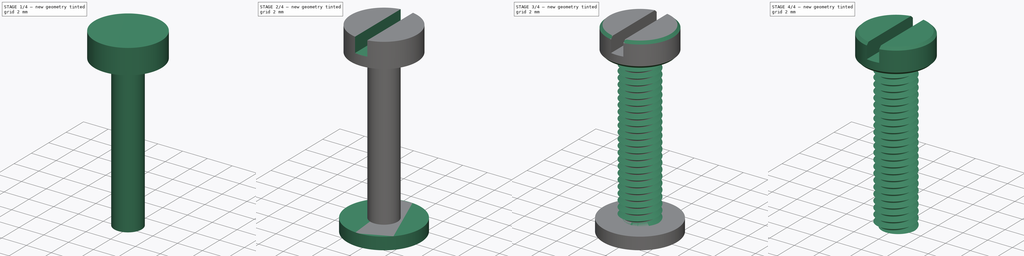
[diagram: build sequence overview — one tinted view per stage of 4, left to right]
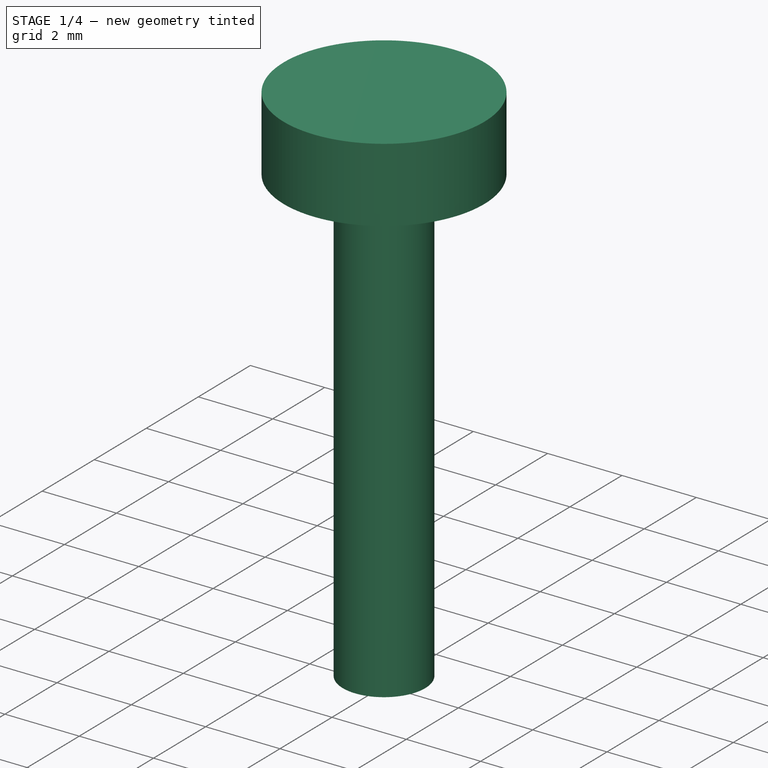
[diagram: stage 1 of 4 — iso view after this stage's code; geometry added in this stage tinted green]
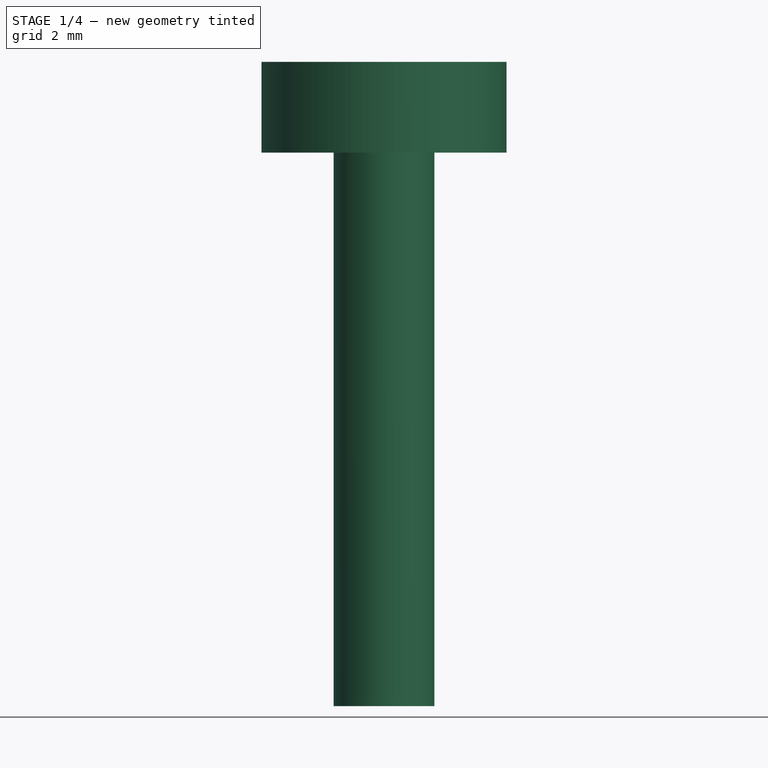
[diagram: stage 1 of 4 — front view after this stage's code; geometry added in this stage tinted green]
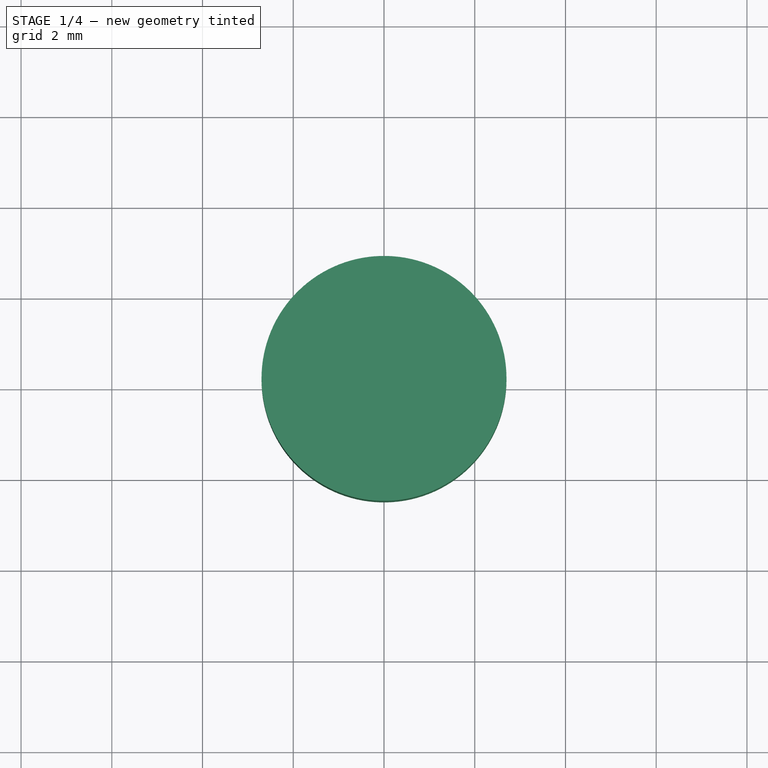
[diagram: stage 1 of 4 — top view after this stage's code; geometry added in this stage tinted green]
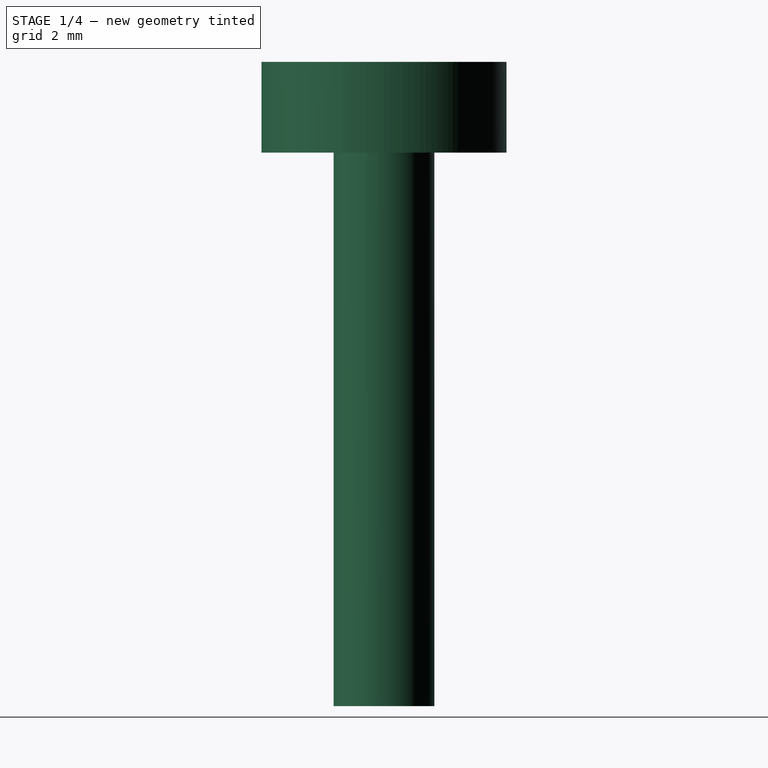
[diagram: stage 1 of 4 — right view after this stage's code; geometry added in this stage tinted green]
FCSTD DOCUMENT  (FreeCAD 0.18R16131 (Git))
Label: Screw tornillo M3x12
License: Public Domain
LicenseURL: http://en.wikipedia.org/wiki/Public_domain
objects: Sketcher::SketchObject×4, Part::MultiFuse×2, Part::Helix×1, Part::Feature×1, Part::Sweep×1, Part::Cylinder×1, PartDesign::Pad×1, PartDesign::Pocket×1, Part::Chamfer×1, PartDesign::Body×1, Part::Extrusion×1, Part::Cut×1, App::DocumentObjectGroup×1
note: 18 computed .brp shape members not serialized (recipe doc carries the construction recipe); baked Part::Feature solids carry a one-line shape summary decoded from their .brp

FEATURE [PartDesign::Pad] Pad009  label="extrusion cabeza tornillo"
  Length = 2
  Length2 = 100
  Placement = pos=(0,0,12.2) rot=(0,0,1;0rad)
  Profile = -> Sketch022
  Refine = true
  Type = 0
FEATURE [PartDesign::Body] Body002  label="Cuerpo Tornillo M3x12"
  Group = -> [Sketch022,Pad009,Sketch023,Pocket004002]
  Origin = -> Origin286
  Tip = -> Pocket004002
FEATURE [Part::Extrusion] Extrude013  label="cilindro nucleo"
  Base = -> Sketch021
  Dir = (0,0,1)
  DirMode = 2
  FaceMakerClass = Part::FaceMakerBullseye
  LengthFwd = 12.22
  LengthRev = 0
  Solid = true
  Symmetric = false
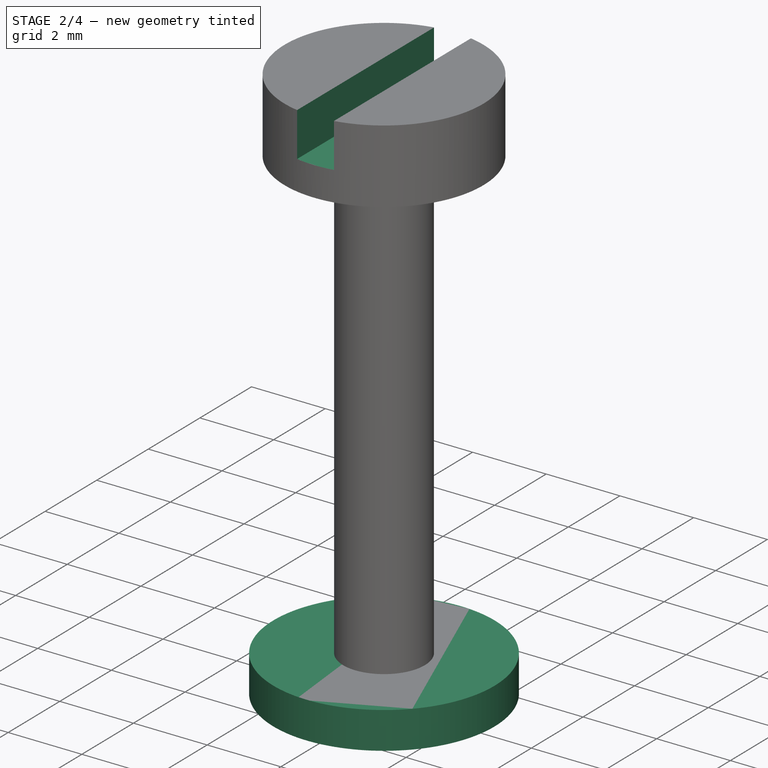
[diagram: stage 2 of 4 — iso view after this stage's code; geometry added in this stage tinted green]
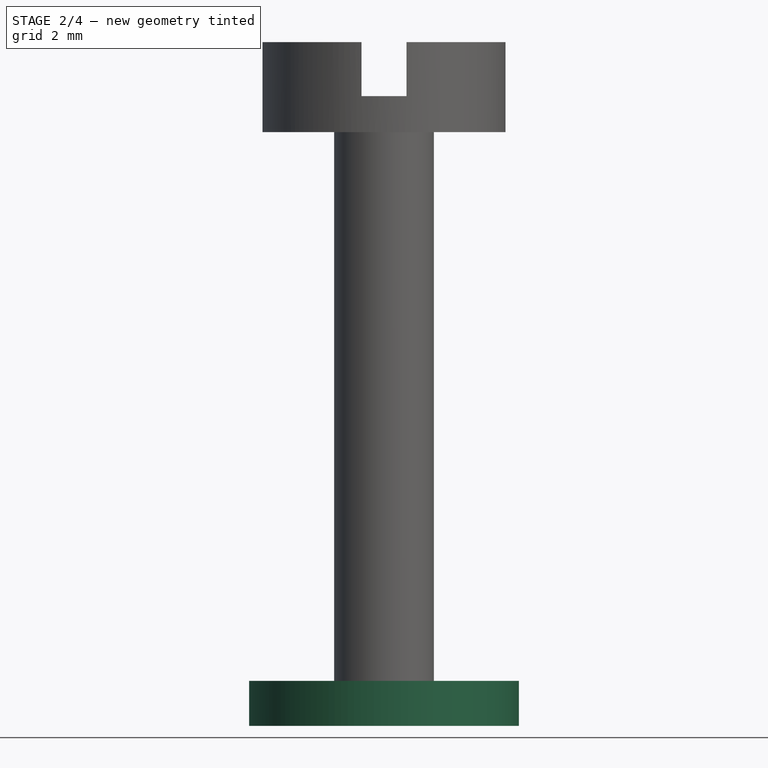
[diagram: stage 2 of 4 — front view after this stage's code; geometry added in this stage tinted green]
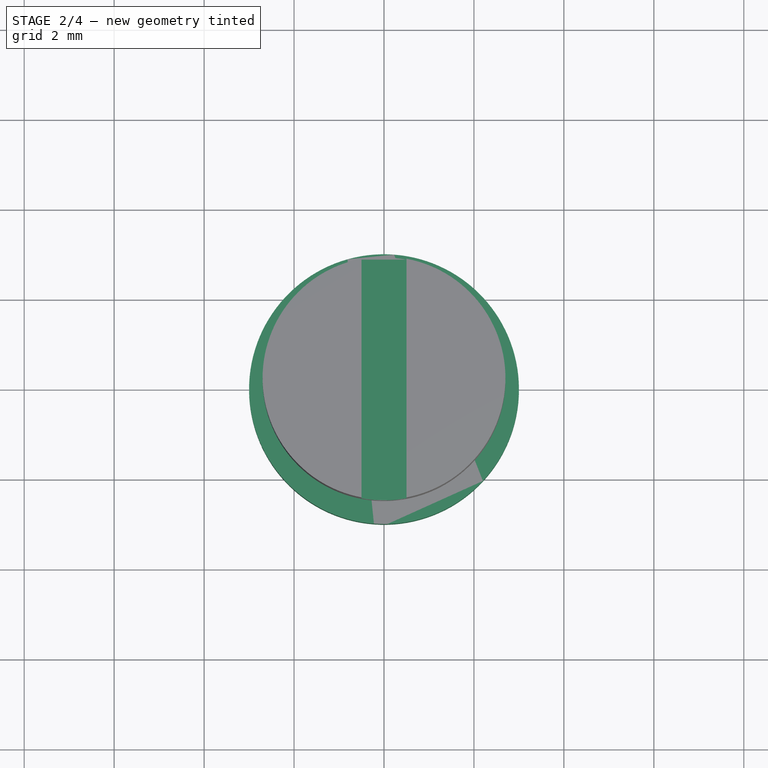
[diagram: stage 2 of 4 — top view after this stage's code; geometry added in this stage tinted green]
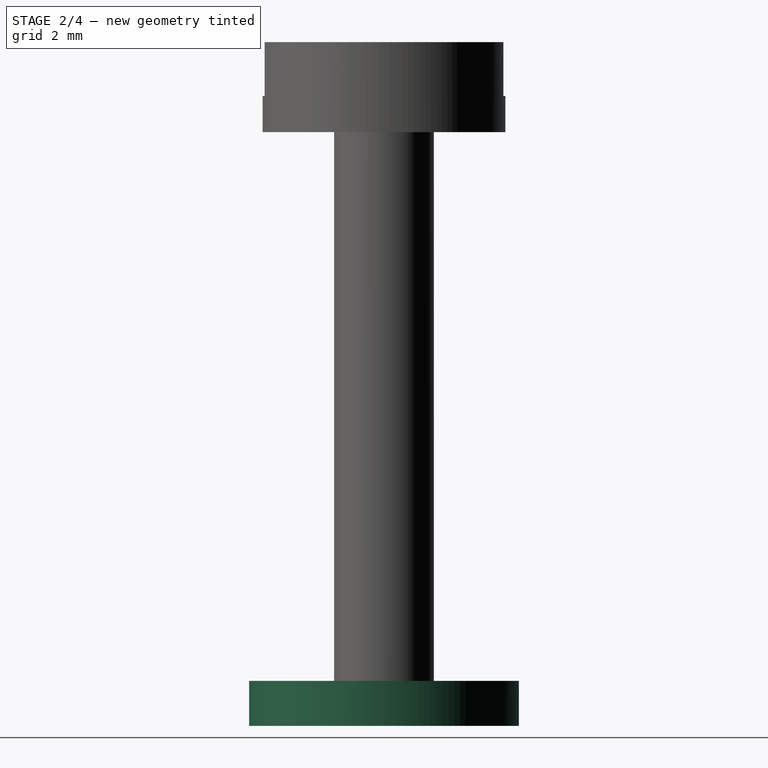
[diagram: stage 2 of 4 — right view after this stage's code; geometry added in this stage tinted green]
FEATURE [Part::Cylinder] Cylinder004  label="Cilindro004"
  Angle = 360
  AttacherType = Attacher::AttachEngine3D
  Height = 1
  Placement = pos=(0,0,-1) rot=(0,0,1;0rad)
  Radius = 3
FEATURE [Sketcher::SketchObject] Sketch023  label="endiduda destornillador"
  MapMode = 5
  Placement = pos=(0,0,14.2) rot=(0,0,1;0rad)
  Support = -> [Pad009]
  sketch-geometry (4):
    g0: LineSegment StartX=-0.5 StartY=3.13379 StartZ=0 EndX=0.5 EndY=3.13379 EndZ=0
    g1: LineSegment StartX=0.5 StartY=3.13379 StartZ=0 EndX=0.5 EndY=-3.13379 EndZ=0
    g2: LineSegment StartX=0.5 StartY=-3.13379 StartZ=0 EndX=-0.5 EndY=-3.13379 EndZ=0
    g3: LineSegment StartX=-0.5 StartY=-3.13379 StartZ=0 EndX=-0.5 EndY=3.13379 EndZ=0
  constraints (10):
    c: Coincident(g0,g1)
    c: Coincident(g1,g2)
    c: Coincident(g2,g3)
    c: Coincident(g3,g0)
    c: Horizontal(g0)
    c: Horizontal(g2)
    c: Vertical(g1)
    c: Vertical(g3)
    c: DistanceX(g2,g2) = 1
    c: Symmetric(g0,g1,g-1)
FEATURE [PartDesign::Pocket] Pocket004002  label="resta de endidura destornillador"
  BaseFeature = -> Pad009
  Length = 1.2
  Length2 = 100
  Placement = pos=(0,0,12.2) rot=(0,0,1;0rad)
  Profile = -> Sketch023
  Refine = true
  Type = 0
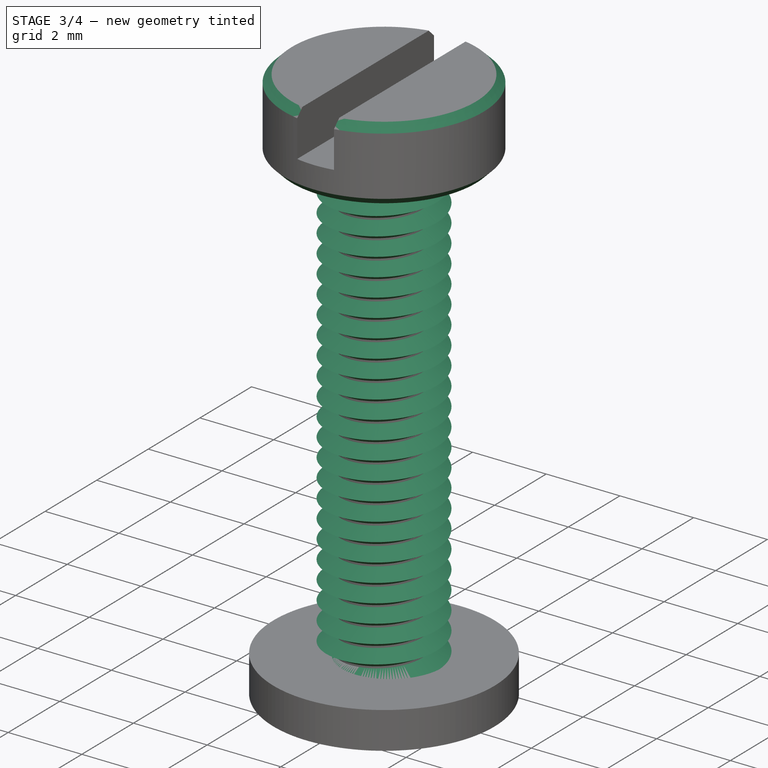
[diagram: stage 3 of 4 — iso view after this stage's code; geometry added in this stage tinted green]
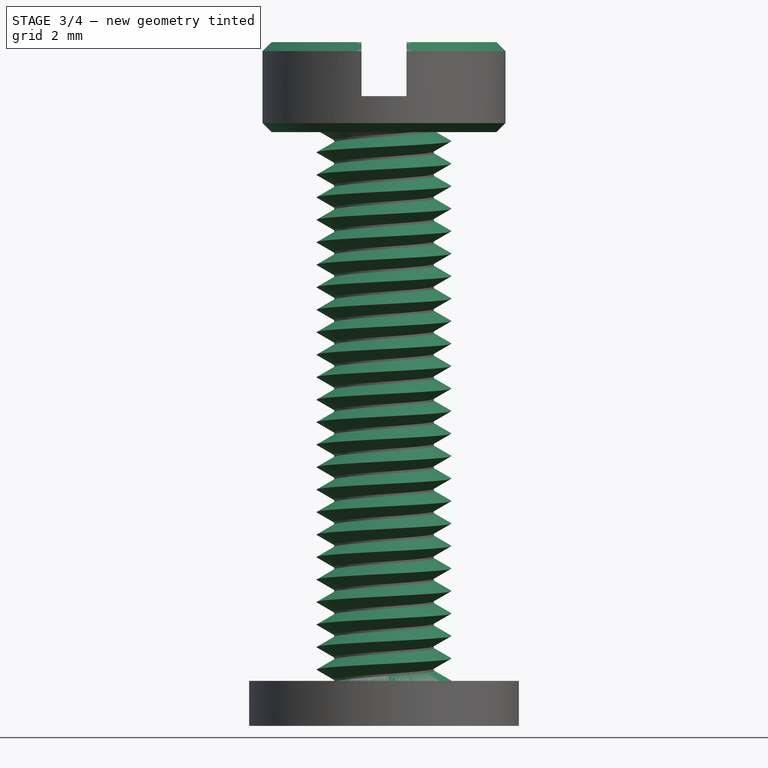
[diagram: stage 3 of 4 — front view after this stage's code; geometry added in this stage tinted green]
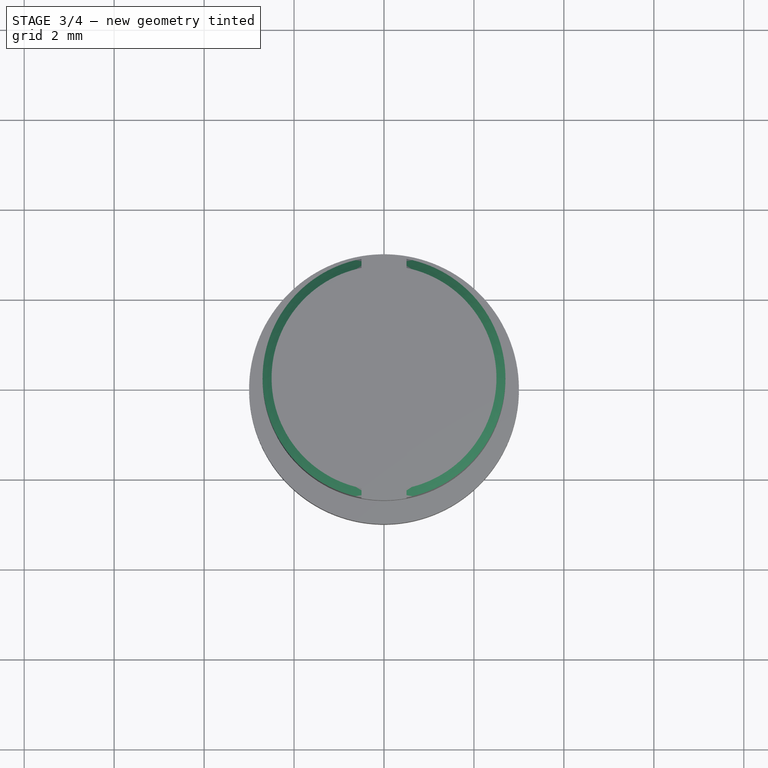
[diagram: stage 3 of 4 — top view after this stage's code; geometry added in this stage tinted green]
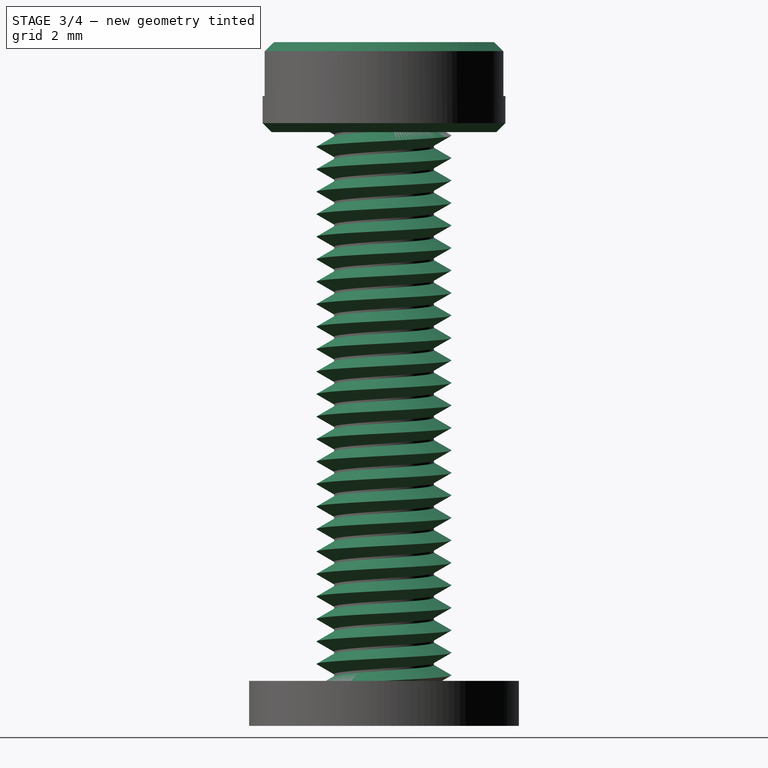
[diagram: stage 3 of 4 — right view after this stage's code; geometry added in this stage tinted green]
FEATURE [Sketcher::SketchObject] Sketch022  label="Cabeza tornillo"
  MapMode = 5
  Placement = pos=(0,0,12.2) rot=(0,0,1;0rad)
  sketch-geometry (1):
    g0: Circle CenterX=0 CenterY=0 CenterZ=0 NormalX=0 NormalY=0 NormalZ=1 AngleXU=0 Radius=2.7
  constraints (2):
    c: Coincident(g0,g-1)
    c: Radius(g0) = 2.7
FEATURE [Sketcher::SketchObject] Sketch021  label="cilindro tornillo"
  MapMode = 5
  Support = -> [XY_Plane286]
  sketch-geometry (1):
    g0: Circle CenterX=0 CenterY=0 CenterZ=0 NormalX=0 NormalY=0 NormalZ=1 AngleXU=0 Radius=1.11
  constraints (2):
    c: Coincident(g0,g-1)
    c: Radius(g0) = 1.11
FEATURE [Part::Helix] Helix001  label="Trayectoria rosca"
  Angle = 0
  AttacherType = Attacher::AttachEngine3D
  Height = 13
  LocalCoord = 0
  Pitch = 0.5
  Radius = 1.5
  Style = 1
FEATURE [Sketcher::SketchObject] Sketch025  label="Paso de rosca boceto"
  ExternalGeometry = -> [Helix001]
  Placement = pos=(0,0,-0.5) rot=(1,0,0;1.5708rad)
  sketch-geometry (3):
    g0: LineSegment StartX=1.1 StartY=0.23094 StartZ=0 EndX=1.1 EndY=-0.23094 EndZ=0
    g1: LineSegment StartX=1.1 StartY=-0.23094 StartZ=0 EndX=1.5 EndY=0 EndZ=0
    g2: LineSegment StartX=1.1 StartY=0.23094 StartZ=0 EndX=1.5 EndY=0 EndZ=0
  constraints (7):
    c: Symmetric(g0,g0,g-1)
    c: DistanceX(g0,g-3) = 0.4
    c: Coincident(g1,g0)
    c: Coincident(g1,g-3)
    c: Coincident(g2,g0)
    c: Coincident(g2,g1)
    c: Angle(g2,g1) = 1.0472
FEATURE [Part::Feature] Cut008_solid  label="Tornillo (Solid)"
  shape: bbox 5.476 x 5.4 x 14.7 mm, 88 faces (baked)
FEATURE [Part::Sweep] Sweep
  Frenet = true
  Sections = -> [Sketch025]
  Solid = true
  Spine = -> Helix001
  Transition = 1
FEATURE [Part::Chamfer] Chamfer001
  Base = -> Pocket004002
  Edges = 4 edges r=0.2: [Edge1,Edge3,Edge7,Edge11]
FEATURE [Part::MultiFuse] Fusion012
  Refine = true
  Shapes = -> [Sweep,Extrude013]
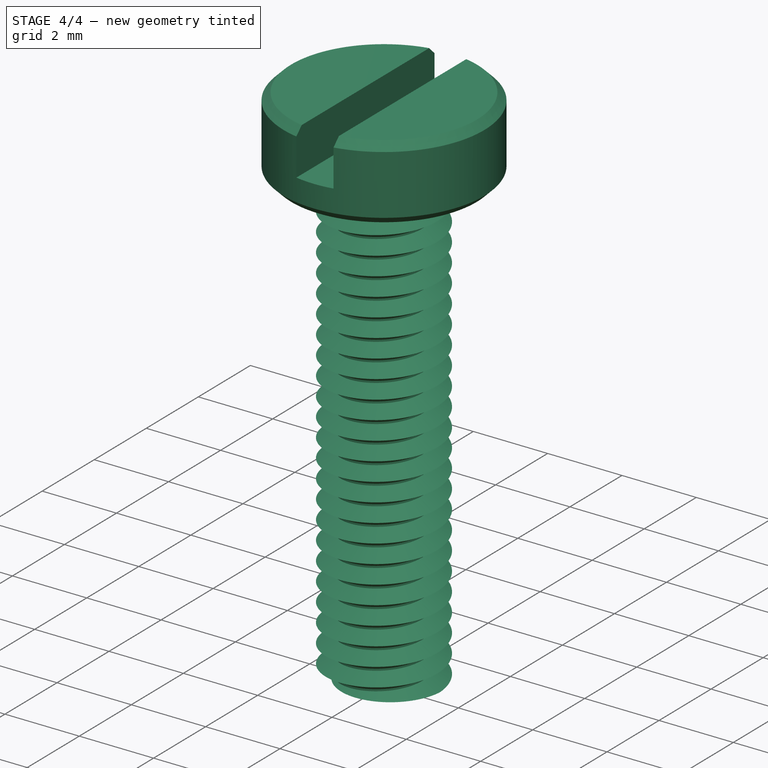
[diagram: stage 4 of 4 — iso view after this stage's code; geometry added in this stage tinted green]
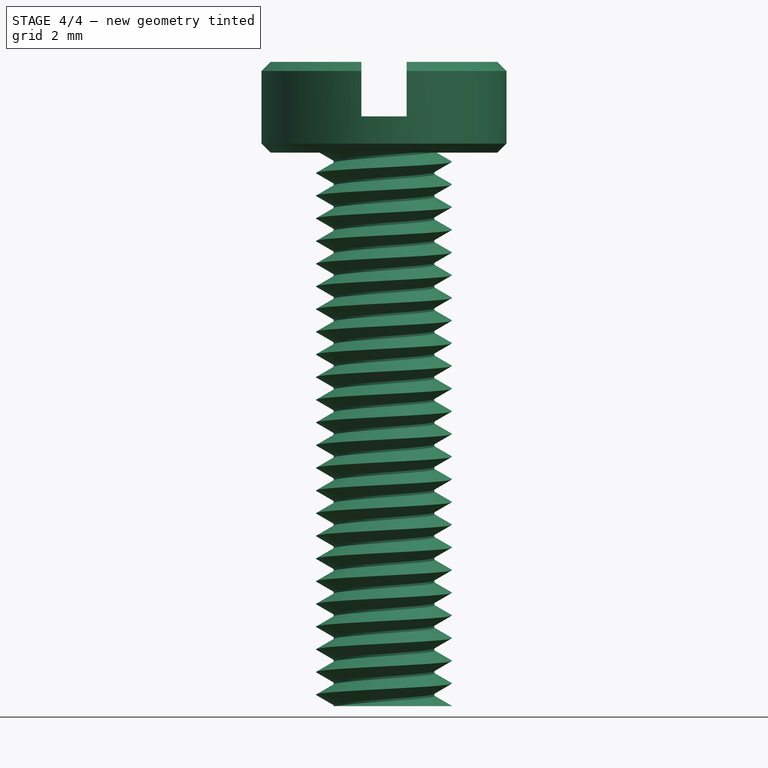
[diagram: stage 4 of 4 — front view after this stage's code; geometry added in this stage tinted green]
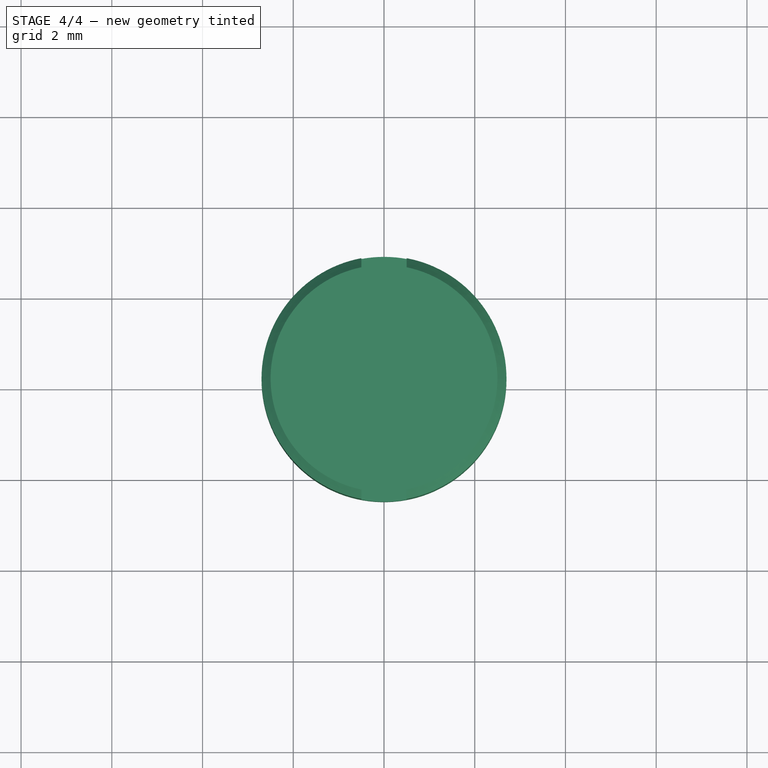
[diagram: stage 4 of 4 — top view after this stage's code; geometry added in this stage tinted green]
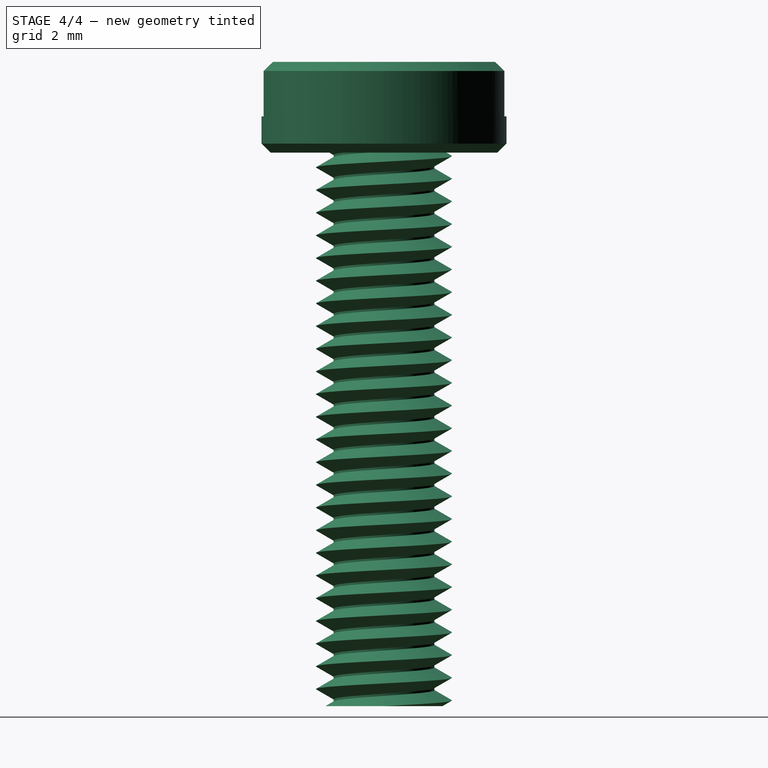
[diagram: stage 4 of 4 — right view after this stage's code; geometry added in this stage tinted green]
FEATURE [Part::MultiFuse] Fusion013  label="cabeza y rosca fusion"
  Refine = true
  Shapes = -> [Fusion012,Chamfer001]
FEATURE [Part::Cut] Cut008  label="Tornillo"
  Base = -> Fusion013
  Refine = true
  Tool = -> Cylinder004
FEATURE [App::DocumentObjectGroup] Group004  label="Tornillo M3x013"
  Group = -> [Body002,Cut008]
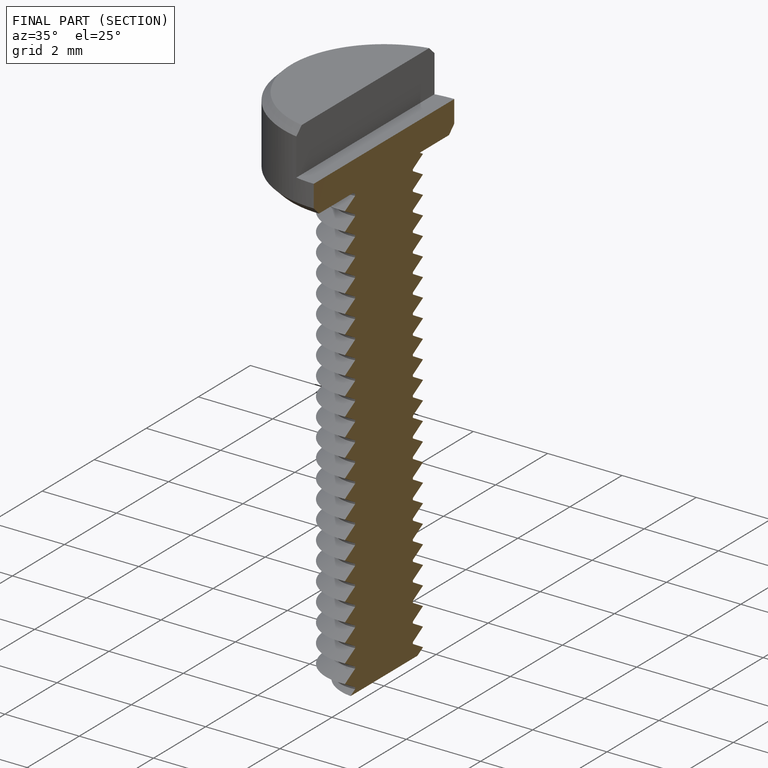
[diagram: finished part — half-section view (interior)]
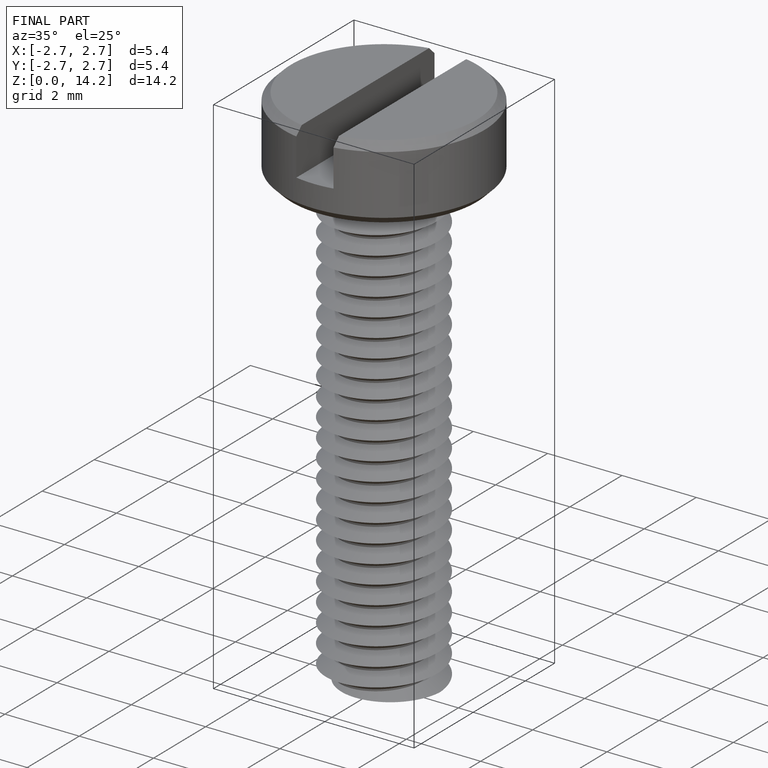
[diagram: finished part — iso view with bounding-box wireframe]
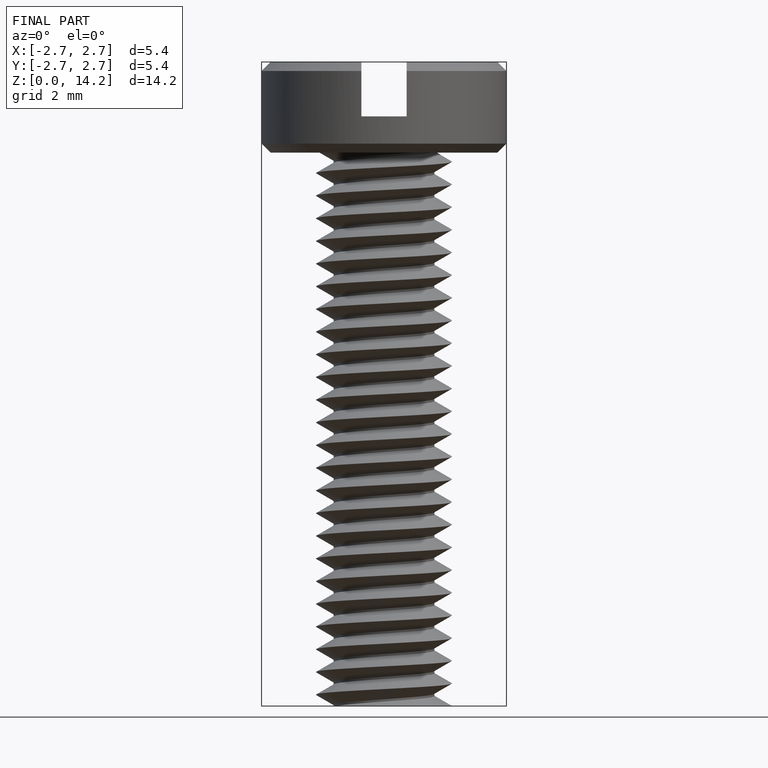
[diagram: finished part — front view with bounding-box wireframe]
